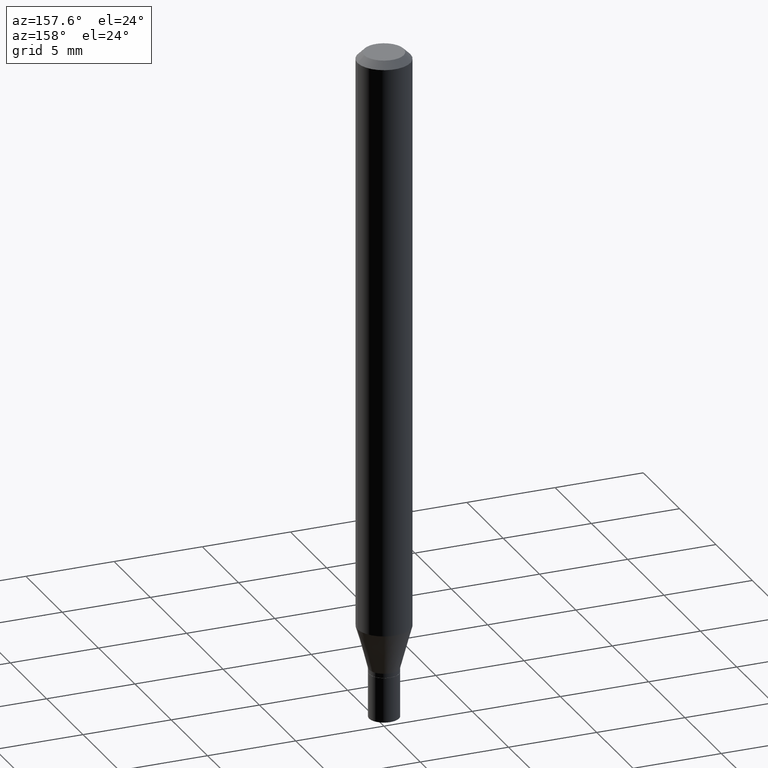
[diagram: clean part render]
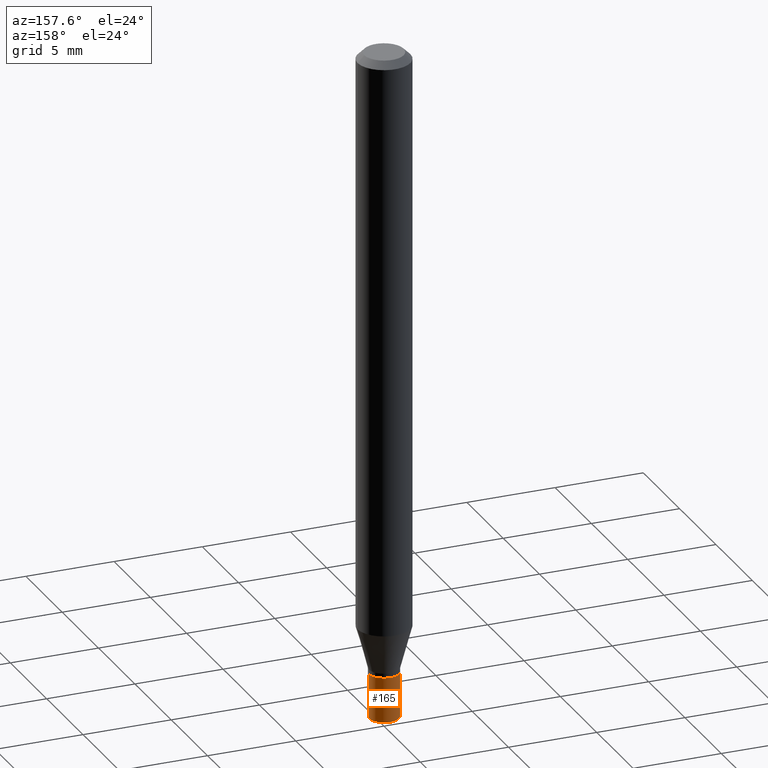
[diagram: same view with one face highlighted and labeled with its STEP entity id]
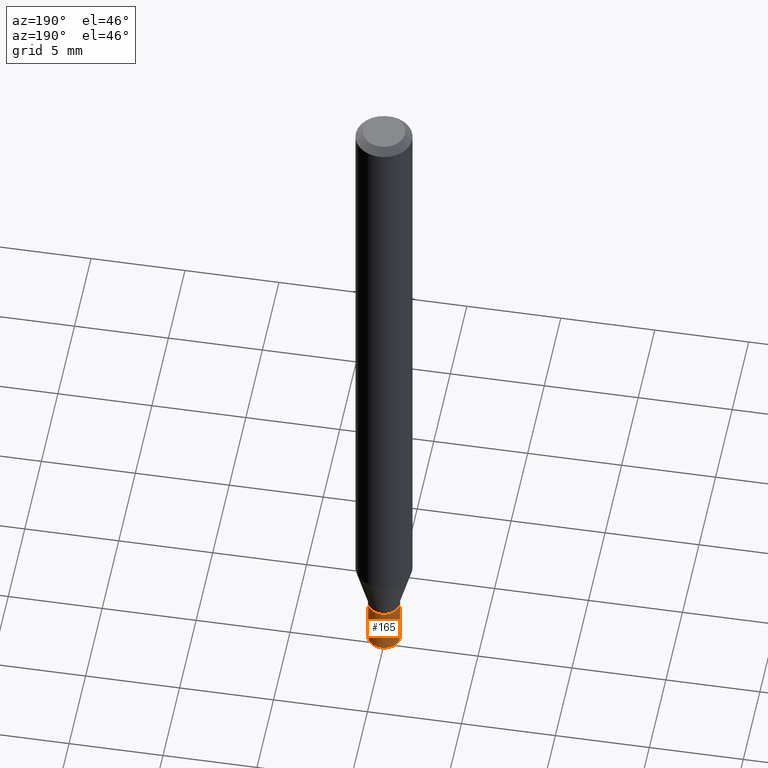
[diagram: same view with one face highlighted and labeled with its STEP entity id]
A machine part, auxiliary view. The second image highlights one B-rep face of the part: STEP entity #165.
A second angle (auxiliary view) of the same face is appended — the face is thin or edge-on in the first view.
In plain terms, the highlighted cylindrical surface (edge-blend (fillet) strip) has radius 0.8496 mm, axis along (-0, 0, 1).
Its self-contained STEP definition (entity closure, byte-faithful):
#24 = DIRECTION ( 'NONE',  ( -2.445468806185136877E-29, 3.491481338843145188E-15, 1.000000000000000000 ) ) ;
#29 = CARTESIAN_POINT ( 'NONE',  ( -0.03345000000000000057, -4.824273099943039539E-15, -1.500000000000000222 ) ) ;
#39 = VECTOR ( 'NONE', #100, 39.37007874015748143 ) ;
#54 = LINE ( 'NONE', #195, #305 ) ;
#58 = ORIENTED_EDGE ( 'NONE', *, *, #311, .T. ) ;
#80 = AXIS2_PLACEMENT_3D ( 'NONE', #189, #335, #408 ) ;
#81 = CARTESIAN_POINT ( 'NONE',  ( 0.03345000000000000057, -5.470802109833324821E-15, -1.500000000000000222 ) ) ;
#91 = CARTESIAN_POINT ( 'NONE',  ( 0.03345000000000000057, -5.120257383413471916E-15, -1.399599999999999955 ) ) ;
#93 = DIRECTION ( 'NONE',  ( 1.000000000000000000, -6.982962677686279332E-15, 0.000000000000000000 ) ) ;
#100 = DIRECTION ( 'NONE',  ( -2.445468806185136877E-29, 3.491481338843145188E-15, 1.000000000000000000 ) ) ;
#115 = DIRECTION ( 'NONE',  ( -2.445468806185136597E-29, 3.491481338843145583E-15, 1.000000000000000000 ) ) ;
#130 = CIRCLE ( 'NONE', #80, 0.03345000000000000057 ) ;
#134 = ORIENTED_EDGE ( 'NONE', *, *, #454, .T. ) ;
#137 = CARTESIAN_POINT ( 'NONE',  ( 3.422678141136717106E-29, -4.886677281844866061E-15, -1.399599999999999955 ) ) ;
#165 = ADVANCED_FACE ( 'NONE', ( #178 ), #367, .T. ) ;
#178 = FACE_OUTER_BOUND ( 'NONE', #348, .T. ) ;
#189 = CARTESIAN_POINT ( 'NONE',  ( 3.668203209277704895E-29, -5.237222008264718177E-15, -1.500000000000000222 ) ) ;
#195 = CARTESIAN_POINT ( 'NONE',  ( 0.03345000000000000057, -2.335801015686056085E-16, 1.631081131503740528E-30 ) ) ;
#196 = VERTEX_POINT ( 'NONE', #81 ) ;
#215 = AXIS2_PLACEMENT_3D ( 'NONE', #439, #115, #433 ) ;
#223 = ORIENTED_EDGE ( 'NONE', *, *, #257, .F. ) ;
#228 = CARTESIAN_POINT ( 'NONE',  ( -0.03345000000000000057, -4.824273099943039539E-15, -1.399599999999999955 ) ) ;
#253 = CIRCLE ( 'NONE', #388, 0.03345000000000000057 ) ;
#257 = EDGE_CURVE ( 'NONE', #196, #326, #54, .T. ) ;
#281 = CARTESIAN_POINT ( 'NONE',  ( -0.03345000000000000057, 2.376765451117535162E-16, -1.645383787690265928E-30 ) ) ;
#296 = VERTEX_POINT ( 'NONE', #228 ) ;
#305 = VECTOR ( 'NONE', #24, 39.37007874015748143 ) ;
#311 = EDGE_CURVE ( 'NONE', #196, #417, #130, .T. ) ;
#326 = VERTEX_POINT ( 'NONE', #91 ) ;
#335 = DIRECTION ( 'NONE',  ( -2.445468806185136597E-29, 3.491481338843145583E-15, 1.000000000000000000 ) ) ;
#348 = EDGE_LOOP ( 'NONE', ( #58, #134, #464, #223 ) ) ;
#367 = CYLINDRICAL_SURFACE ( 'NONE', #215, 0.03345000000000000057 ) ;
#374 = EDGE_CURVE ( 'NONE', #326, #296, #253, .T. ) ;
#378 = LINE ( 'NONE', #281, #39 ) ;
#388 = AXIS2_PLACEMENT_3D ( 'NONE', #137, #418, #93 ) ;
#408 = DIRECTION ( 'NONE',  ( 1.000000000000000000, -6.982962677686279332E-15, 0.000000000000000000 ) ) ;
#417 = VERTEX_POINT ( 'NONE', #29 ) ;
#418 = DIRECTION ( 'NONE',  ( -2.445468806185136597E-29, 3.491481338843145583E-15, 1.000000000000000000 ) ) ;
#433 = DIRECTION ( 'NONE',  ( 1.000000000000000000, -6.982962677686265922E-15, 4.876176775795935793E-29 ) ) ;
#439 = CARTESIAN_POINT ( 'NONE',  ( 0.000000000000000000, 0.000000000000000000, 0.000000000000000000 ) ) ;
#454 = EDGE_CURVE ( 'NONE', #417, #296, #378, .T. ) ;
#464 = ORIENTED_EDGE ( 'NONE', *, *, #374, .F. ) ;